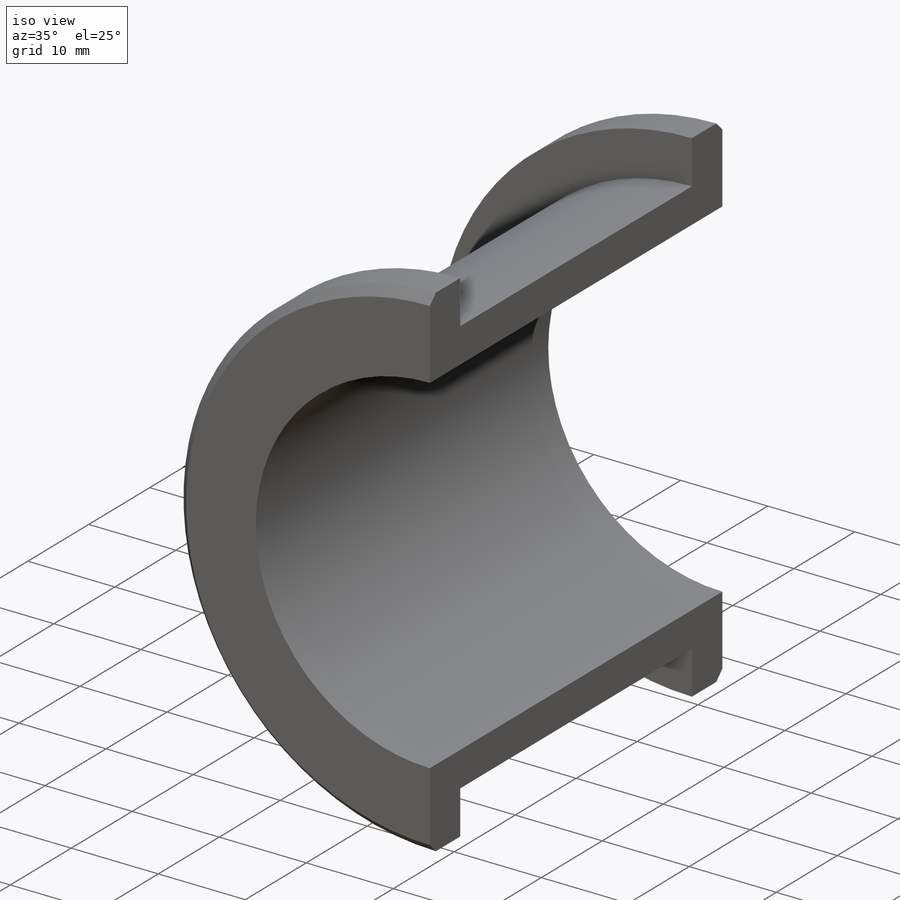
[diagram: iso view]
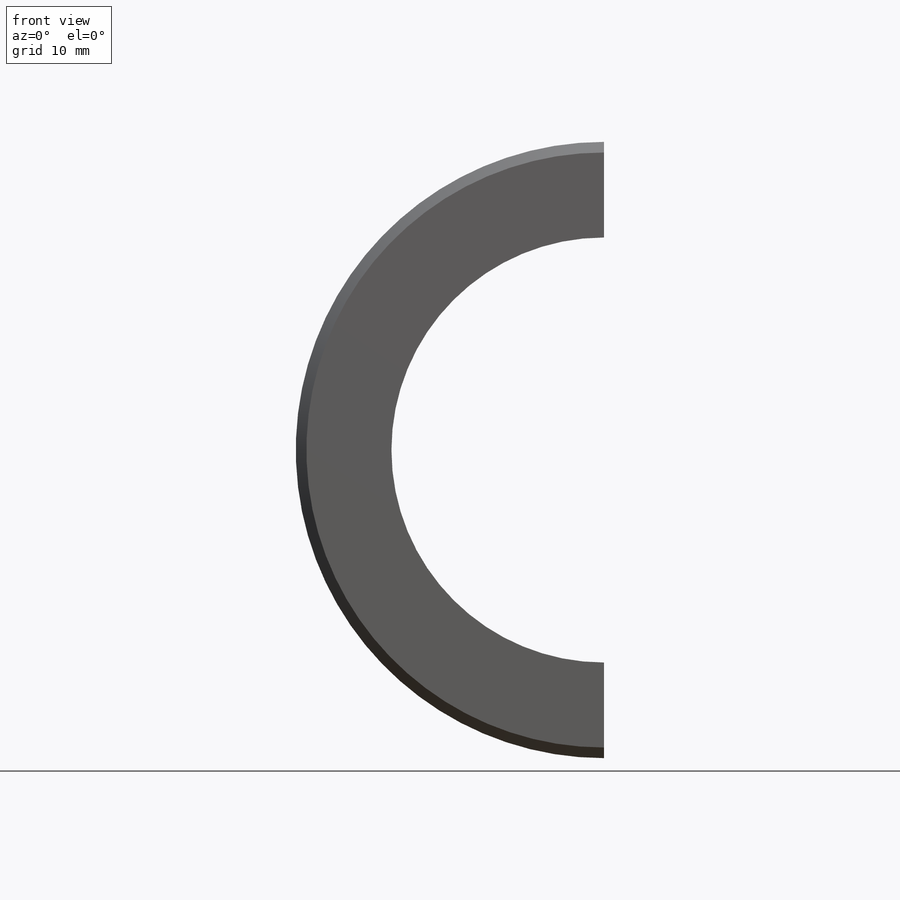
[diagram: front view]
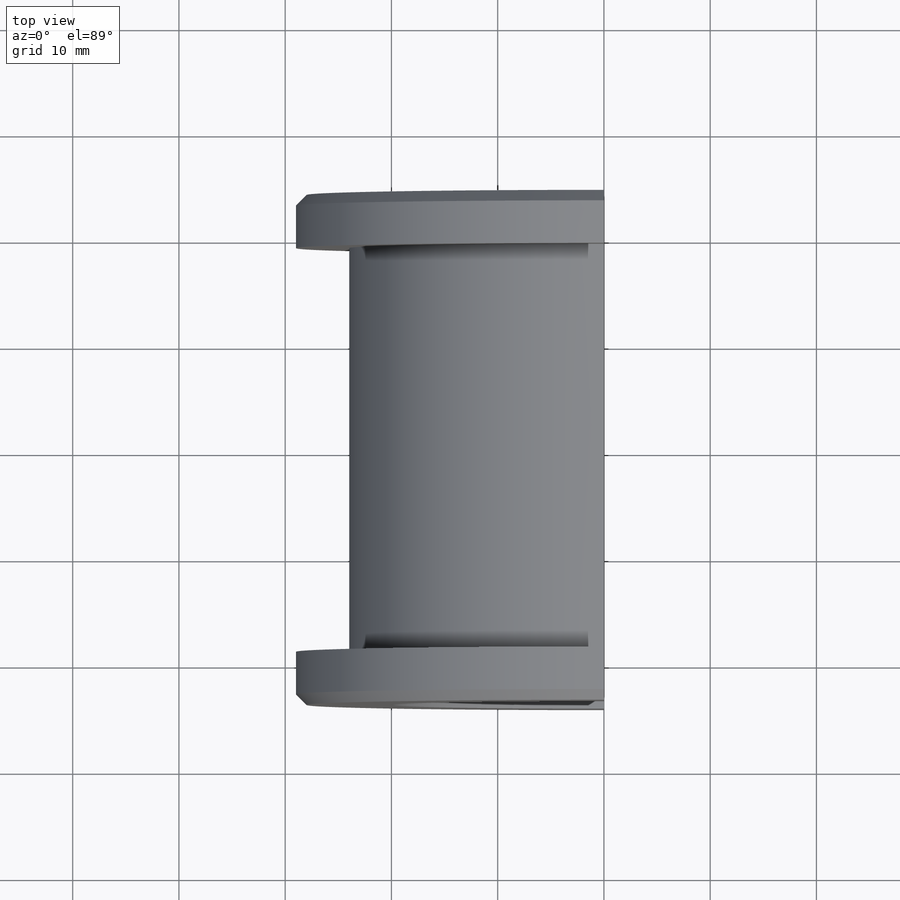
[diagram: top view]
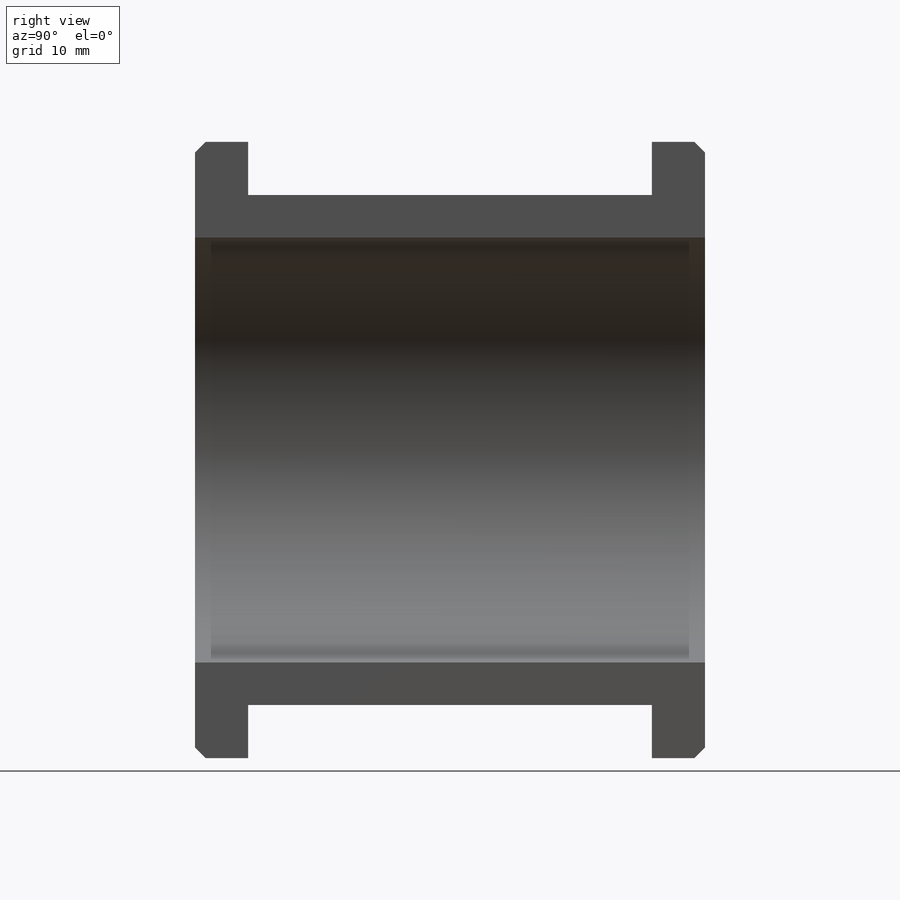
[diagram: right view]
SOLIDWORKS PART (.sldprt)
format: sldprt  version: not decoded by parser v0  size: 240,640 bytes
history: native  units: mm
features: plane x3, sketch x3, extrude x2, material x1, mirror x1, cut_extrude x1, chamfer x1 (+9 scaffold rows collapsed)
feature tree (21):
  scaffold x9  (default folders/planes/origin — collapsed)
  material  "Бронза"
  plane  "Спереди"
  plane  "Сверху"
  plane  "Справа"
  sketch  "Эскиз1"  dims[c1.D1=40.0mm c1.D2=42.0mm c1.D3=48.0mm c2.D1=40.0mm c2.D2=48.0mm]
  extrude  "Бобышка-Вытянуть1"  Depth=24mm
  sketch  "Эскиз2"  dims[D2=58.0mm D1=0.0mm]
  extrude  "Бобышка-Вытянуть2"  Depth=5mm
  mirror  "Зеркальное отражение1"
  sketch  "Эскиз3"
  cut_extrude  "Вырез-Вытянуть1"  [1 undecoded]
  chamfer  "Фаска1"  Distance=1mm Angle=45deg
decode coverage: 5 of 8 modeling features carry decoded parameters
note: 1 parameter value undecoded
note: suppression state not decoded; provenance and decode notes live in map.json
